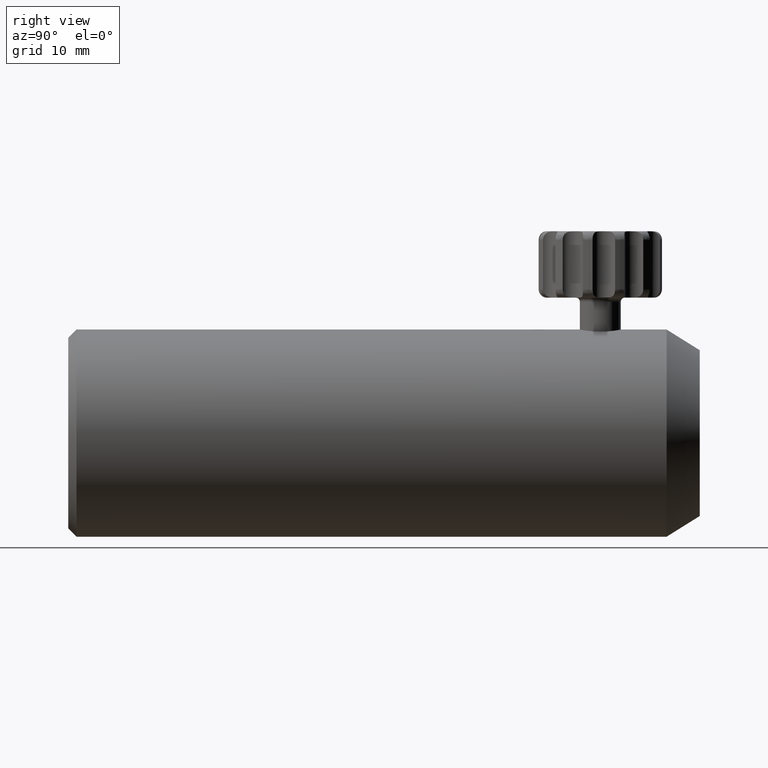
[diagram: clean part render]
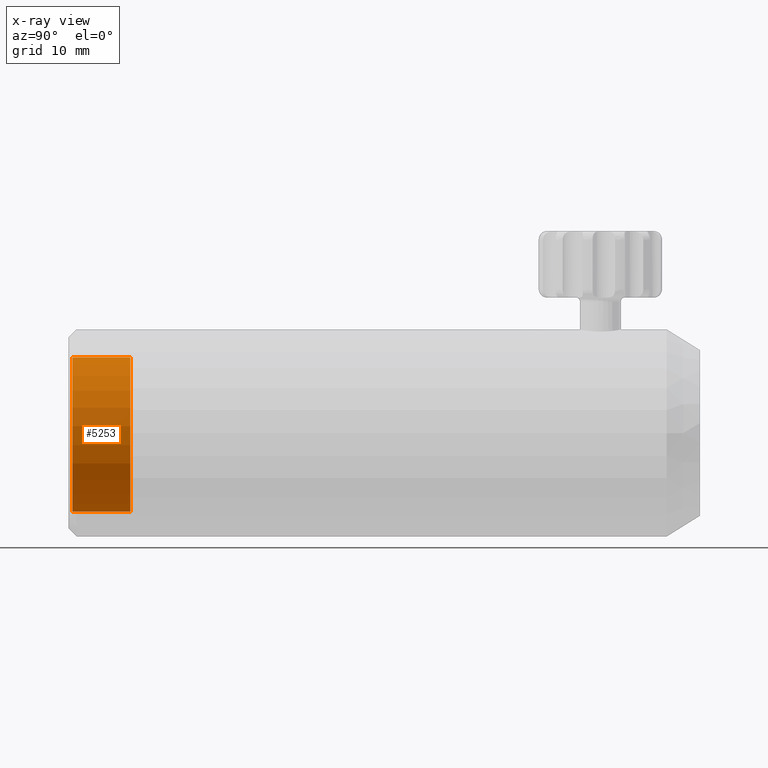
[diagram: x-ray — body ghosted, one internal face saturated and labeled with its STEP entity id]
A machine part, right view, then the same camera in x-ray: the body is ghosted and one INTERNAL B-rep face — a face not visible from any outside direction — is saturated and labeled: STEP entity #5253.
In plain terms, the highlighted cylindrical surface (partial cylindrical patch) has radius 9.5 mm, axis along (0, -1, -0).
Its self-contained STEP definition (entity closure, byte-faithful):
#145 = CARTESIAN_POINT ( 'NONE',  ( -1.256373477476202500E-014, -2.228264329007511300, 2.531587495906893700E-015 ) ) ;
#172 = VECTOR ( 'NONE', #3498, 1000.000000000000000 ) ;
#287 = FACE_OUTER_BOUND ( 'NONE', #3098, .T. ) ;
#423 = CARTESIAN_POINT ( 'NONE',  ( 2.587097742396871100, -9.228264329007522800, 9.140947722817641000 ) ) ;
#574 = CARTESIAN_POINT ( 'NONE',  ( 2.587097742396871100, -2.228264329007511300, 9.140947722817641000 ) ) ;
#673 = CIRCLE ( 'NONE', #1080, 9.499999999999989300 ) ;
#703 = CARTESIAN_POINT ( 'NONE',  ( -2.587097742396895100, -9.228264329007522800, -9.140947722817637500 ) ) ;
#827 = VERTEX_POINT ( 'NONE', #703 ) ;
#880 = DIRECTION ( 'NONE',  ( 7.743483043472672600E-018, -1.000000000000000000, -4.127411765784181600E-018 ) ) ;
#986 = DIRECTION ( 'NONE',  ( 0.2723260781470401800, 0.0000000000000000000, 0.9622050234544881100 ) ) ;
#988 = LINE ( 'NONE', #4930, #4245 ) ;
#1053 = CIRCLE ( 'NONE', #5041, 9.499999999999989300 ) ;
#1080 = AXIS2_PLACEMENT_3D ( 'NONE', #145, #3415, #986 ) ;
#1162 = DIRECTION ( 'NONE',  ( 0.2723260781470401800, 0.0000000000000000000, 0.9622050234544881100 ) ) ;
#1682 = EDGE_CURVE ( 'NONE', #4051, #827, #3105, .T. ) ;
#2129 = ORIENTED_EDGE ( 'NONE', *, *, #4815, .T. ) ;
#2213 = AXIS2_PLACEMENT_3D ( 'NONE', #5074, #4614, #3014 ) ;
#2755 = DIRECTION ( 'NONE',  ( -7.743483043472672600E-018, 1.000000000000000000, 4.127411765784181600E-018 ) ) ;
#3014 = DIRECTION ( 'NONE',  ( -0.2723260781470401800, 0.0000000000000000000, -0.9622050234544881100 ) ) ;
#3098 = EDGE_LOOP ( 'NONE', ( #2129, #4472, #4107, #5015 ) ) ;
#3105 = LINE ( 'NONE', #3576, #172 ) ;
#3415 = DIRECTION ( 'NONE',  ( 7.743483043472672600E-018, -1.000000000000000000, -4.127411765784181600E-018 ) ) ;
#3498 = DIRECTION ( 'NONE',  ( 7.743483043472672600E-018, -1.000000000000000000, -4.127411765784181600E-018 ) ) ;
#3576 = CARTESIAN_POINT ( 'NONE',  ( -2.587097742396891500, -1.728264329007510600, -9.140947722817625000 ) ) ;
#3590 = CARTESIAN_POINT ( 'NONE',  ( -1.257587783909386300E-014, -9.228264329007522800, 2.532490061821446900E-015 ) ) ;
#3687 = EDGE_CURVE ( 'NONE', #4494, #827, #1053, .T. ) ;
#3991 = CARTESIAN_POINT ( 'NONE',  ( -2.587097742396895100, -2.228264329007511300, -9.140947722817637500 ) ) ;
#4051 = VERTEX_POINT ( 'NONE', #3991 ) ;
#4107 = ORIENTED_EDGE ( 'NONE', *, *, #3687, .T. ) ;
#4245 = VECTOR ( 'NONE', #880, 1000.000000000000000 ) ;
#4472 = ORIENTED_EDGE ( 'NONE', *, *, #5085, .T. ) ;
#4494 = VERTEX_POINT ( 'NONE', #423 ) ;
#4614 = DIRECTION ( 'NONE',  ( 7.743483043472672600E-018, -1.000000000000000000, -4.127411765784181600E-018 ) ) ;
#4815 = EDGE_CURVE ( 'NONE', #4051, #4839, #673, .T. ) ;
#4839 = VERTEX_POINT ( 'NONE', #574 ) ;
#4930 = CARTESIAN_POINT ( 'NONE',  ( 2.587097742396867500, -1.728264329007510600, 9.140947722817628600 ) ) ;
#5015 = ORIENTED_EDGE ( 'NONE', *, *, #1682, .F. ) ;
#5041 = AXIS2_PLACEMENT_3D ( 'NONE', #3590, #2755, #1162 ) ;
#5068 = CYLINDRICAL_SURFACE ( 'NONE', #2213, 9.499999999999989300 ) ;
#5074 = CARTESIAN_POINT ( 'NONE',  ( -1.256286741302403700E-014, -1.728264329007510600, 2.531523026912996800E-015 ) ) ;
#5085 = EDGE_CURVE ( 'NONE', #4839, #4494, #988, .T. ) ;
#5253 = ADVANCED_FACE ( 'NONE', ( #287 ), #5068, .T. ) ;